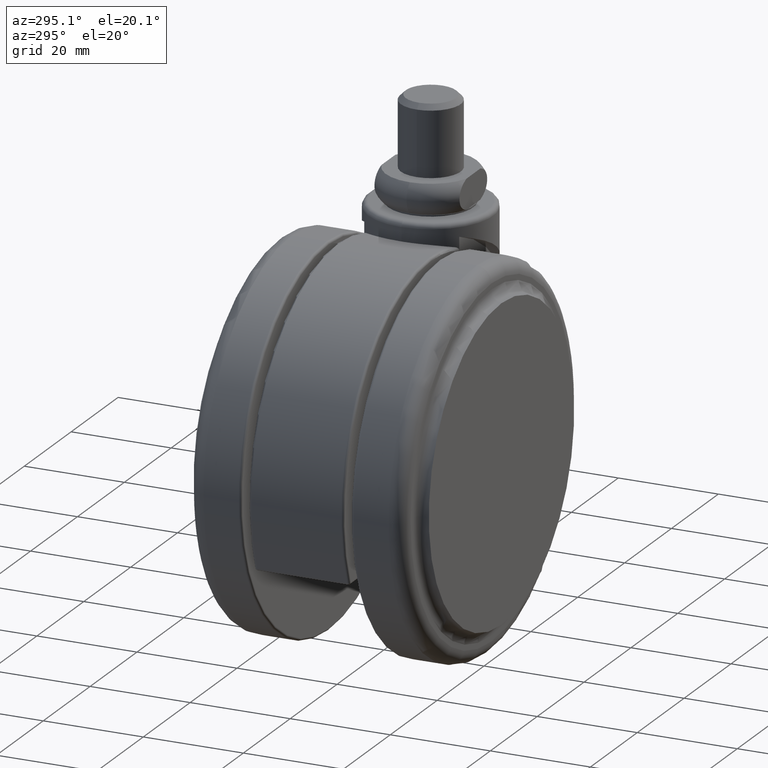
[diagram: clean part render]
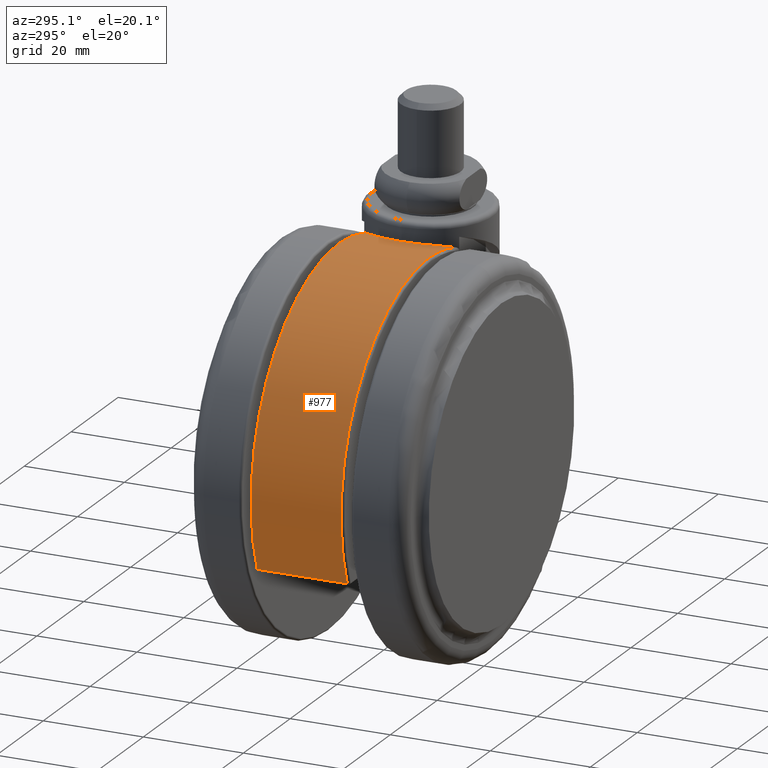
[diagram: same view with one face highlighted and labeled with its STEP entity id]
A machine part, auxiliary view. The second image highlights one B-rep face of the part: STEP entity #977.
In plain terms, the highlighted cylindrical surface (partial cylindrical patch) has radius 37.5 mm, axis along (0, -1, 0).
Its self-contained STEP definition (entity closure, byte-faithful):
#13 = ORIENTED_EDGE ( 'NONE', *, *, #1825, .T. ) ;
#56 = CARTESIAN_POINT ( 'NONE',  ( -8.972938191872776400, 8.712518925962278600, -4.656565500695855100 ) ) ;
#118 = AXIS2_PLACEMENT_3D ( 'NONE', #3455, #3085, #3177 ) ;
#146 = CIRCLE ( 'NONE', #2386, 37.50000000000000000 ) ;
#169 = CARTESIAN_POINT ( 'NONE',  ( -12.50000000000000000, 2.995251654553703900E-014, -3.757653858252425000 ) ) ;
#198 = ORIENTED_EDGE ( 'NONE', *, *, #922, .T. ) ;
#303 = AXIS2_PLACEMENT_3D ( 'NONE', #1575, #1366, #1321 ) ;
#343 = CARTESIAN_POINT ( 'NONE',  ( -12.39317029340259800, 1.685029787549746400, -3.779596173792669300 ) ) ;
#414 = CIRCLE ( 'NONE', #303, 37.50000000000000000 ) ;
#556 = CARTESIAN_POINT ( 'NONE',  ( -9.267378490791253800, -8.428721800230761100, -4.563286331331251100 ) ) ;
#653 = CARTESIAN_POINT ( 'NONE',  ( -12.07499608784259600, 3.339284003571599600, -3.846566198035183500 ) ) ;
#701 = CARTESIAN_POINT ( 'NONE',  ( -20.00000000000045100, -8.999999999999799300, -40.50000000000000000 ) ) ;
#772 = CARTESIAN_POINT ( 'NONE',  ( -20.00000000000045100, -8.999999999999799300, -3.000000000000002700 ) ) ;
#867 = CARTESIAN_POINT ( 'NONE',  ( -12.50000000000000000, 2.995251654553703900E-014, -3.757653858252425000 ) ) ;
#880 = DIRECTION ( 'NONE',  ( 0.0000000000000000000, 0.0000000000000000000, 1.000000000000000000 ) ) ;
#888 = CARTESIAN_POINT ( 'NONE',  ( -8.674675786448901200, -8.999999999999809900, -4.751055519666890000 ) ) ;
#922 = EDGE_CURVE ( 'NONE', #3170, #923, #2250, .T. ) ;
#923 = VERTEX_POINT ( 'NONE', #3403 ) ;
#957 = CARTESIAN_POINT ( 'NONE',  ( -11.32890675711923300, 5.299343921343998800, -4.015880330838450100 ) ) ;
#977 = ADVANCED_FACE ( 'NONE', ( #3760 ), #2054, .T. ) ;
#1001 = EDGE_CURVE ( 'NONE', #1374, #2538, #414, .T. ) ;
#1280 = CARTESIAN_POINT ( 'NONE',  ( -10.73730232612175200, 6.413705260039230400, -4.161370447469451500 ) ) ;
#1321 = DIRECTION ( 'NONE',  ( 0.0000000000000000000, 0.0000000000000000000, 1.000000000000000000 ) ) ;
#1322 = CARTESIAN_POINT ( 'NONE',  ( -54.86951361419750100, 0.0000000000000000000, -54.29735555493609700 ) ) ;
#1366 = DIRECTION ( 'NONE',  ( 0.0000000000000000000, 1.000000000000000000, 0.0000000000000000000 ) ) ;
#1374 = VERTEX_POINT ( 'NONE', #3328 ) ;
#1379 = B_SPLINE_CURVE_WITH_KNOTS ( 'NONE', 3,
 ( #2784, #1889, #2187, #343, #2492, #653, #2799, #957, #3104, #1280, #3396, #1588, #3704, #1902, #56, #2202 ),
 .UNSPECIFIED., .F., .F.,
 ( 4, 2, 2, 2, 2, 2, 2, 4 ),
 ( 0.01083297000393782300, 0.01209086360940814100, 0.01334875721487845800, 0.01586454442581909300, 0.01712243803128940900, 0.01838033163675972500, 0.01963822524223004400, 0.02089611884770036000 ),
 .UNSPECIFIED. ) ;
#1445 = CARTESIAN_POINT ( 'NONE',  ( -12.49999999999999800, -0.8407722689415021400, -3.757653858252426800 ) ) ;
#1457 = CARTESIAN_POINT ( 'NONE',  ( -10.51517581383509300, -6.771638203603449900, -4.218482085273332200 ) ) ;
#1478 = LINE ( 'NONE', #1322, #2206 ) ;
#1501 = CARTESIAN_POINT ( 'NONE',  ( -8.674675786448901200, -8.999999999999809900, -4.751055519666890000 ) ) ;
#1525 = CARTESIAN_POINT ( 'NONE',  ( -10.73847770299704000, -6.411853426593876500, -4.161066474243648700 ) ) ;
#1543 = CARTESIAN_POINT ( 'NONE',  ( -12.05401286481520300, -3.335758711177920300, -3.851291589132261400 ) ) ;
#1575 = CARTESIAN_POINT ( 'NONE',  ( -20.00000000000045100, -8.999999999999799300, -40.50000000000000000 ) ) ;
#1588 = CARTESIAN_POINT ( 'NONE',  ( -10.04652675849994200, 7.449099134835352100, -4.344254723362667800 ) ) ;
#1600 = CARTESIAN_POINT ( 'NONE',  ( -11.32877515779916800, -5.299412595533453000, -4.015916222165394300 ) ) ;
#1785 = CARTESIAN_POINT ( 'NONE',  ( -12.41604507323763200, -1.677237000265646300, -3.774477651932344200 ) ) ;
#1825 = EDGE_CURVE ( 'NONE', #2788, #3393, #1922, .T. ) ;
#1844 = ORIENTED_EDGE ( 'NONE', *, *, #3174, .T. ) ;
#1889 = CARTESIAN_POINT ( 'NONE',  ( -12.50000000000000000, 0.4198857714410683100, -3.757653858252427700 ) ) ;
#1902 = CARTESIAN_POINT ( 'NONE',  ( -9.258363189833458400, 8.408577873207479000, -4.570274193610124800 ) ) ;
#1922 = B_SPLINE_CURVE_WITH_KNOTS ( 'NONE', 3,
 ( #1501, #556, #3639, #1457, #1525, #2038, #1600, #2721, #2373, #1543, #3116, #1785, #1445, #867 ),
 .UNSPECIFIED., .F., .F.,
 ( 4, 2, 2, 2, 2, 2, 4 ),
 ( 0.0007578292614578130900, 0.003276614447077814200, 0.004536007039887815200, 0.005795399632697815700, 0.007054792225507816200, 0.008314184818317818500, 0.01083297000393782300 ),
 .UNSPECIFIED. ) ;
#2038 = CARTESIAN_POINT ( 'NONE',  ( -11.14504601772913600, -5.675801001144079400, -4.059861759056297500 ) ) ;
#2054 = CYLINDRICAL_SURFACE ( 'NONE', #118, 37.50000000000000000 ) ;
#2075 = DIRECTION ( 'NONE',  ( 0.0000000000000000000, 1.000000000000000000, 0.0000000000000000000 ) ) ;
#2084 = EDGE_CURVE ( 'NONE', #2538, #2788, #146, .T. ) ;
#2169 = CARTESIAN_POINT ( 'NONE',  ( -20.00000000000045100, 9.000000000000199000, -40.50000000000000000 ) ) ;
#2187 = CARTESIAN_POINT ( 'NONE',  ( -12.47890053855938700, 0.8408547169093227900, -3.761941011588097300 ) ) ;
#2202 = CARTESIAN_POINT ( 'NONE',  ( -8.674675786448538900, 9.000000000000230900, -4.751055519667010800 ) ) ;
#2206 = VECTOR ( 'NONE', #3144, 1000.000000000000000 ) ;
#2250 = CIRCLE ( 'NONE', #2658, 37.50000000000000000 ) ;
#2373 = CARTESIAN_POINT ( 'NONE',  ( -11.80282795274265500, -4.137603731906472700, -3.906654837730500200 ) ) ;
#2386 = AXIS2_PLACEMENT_3D ( 'NONE', #701, #2075, #880 ) ;
#2468 = ORIENTED_EDGE ( 'NONE', *, *, #2852, .T. ) ;
#2492 = CARTESIAN_POINT ( 'NONE',  ( -12.32874735431087700, 2.104418142397915100, -3.792924973968794700 ) ) ;
#2538 = VERTEX_POINT ( 'NONE', #772 ) ;
#2540 = CARTESIAN_POINT ( 'NONE',  ( -8.674675786448538900, 9.000000000000230900, -4.751055519667010800 ) ) ;
#2563 = DIRECTION ( 'NONE',  ( 0.0000000000000000000, -1.000000000000000000, 0.0000000000000000000 ) ) ;
#2658 = AXIS2_PLACEMENT_3D ( 'NONE', #2169, #2563, #2831 ) ;
#2721 = CARTESIAN_POINT ( 'NONE',  ( -11.65766593866017000, -4.530314039475490200, -3.939311114517211700 ) ) ;
#2727 = EDGE_LOOP ( 'NONE', ( #13, #2468, #198, #1844, #3536, #2847 ) ) ;
#2784 = CARTESIAN_POINT ( 'NONE',  ( -12.50000000000000000, 2.995251654553703900E-014, -3.757653858252425000 ) ) ;
#2788 = VERTEX_POINT ( 'NONE', #888 ) ;
#2799 = CARTESIAN_POINT ( 'NONE',  ( -11.82515094896099400, 4.138176200578661800, -3.900311104676254200 ) ) ;
#2831 = DIRECTION ( 'NONE',  ( 0.0000000000000000000, 0.0000000000000000000, -1.000000000000000000 ) ) ;
#2847 = ORIENTED_EDGE ( 'NONE', *, *, #2084, .T. ) ;
#2852 = EDGE_CURVE ( 'NONE', #3393, #3170, #1379, .T. ) ;
#3085 = DIRECTION ( 'NONE',  ( 0.0000000000000000000, -1.000000000000000000, 0.0000000000000000000 ) ) ;
#3104 = CARTESIAN_POINT ( 'NONE',  ( -11.14238452377035500, 5.680892846167517400, -4.060512983454700000 ) ) ;
#3116 = CARTESIAN_POINT ( 'NONE',  ( -12.16031509086136700, -2.925245578562813500, -3.828527006093505500 ) ) ;
#3144 = DIRECTION ( 'NONE',  ( 0.0000000000000000000, -1.000000000000000000, 0.0000000000000000000 ) ) ;
#3170 = VERTEX_POINT ( 'NONE', #2540 ) ;
#3174 = EDGE_CURVE ( 'NONE', #923, #1374, #1478, .T. ) ;
#3177 = DIRECTION ( 'NONE',  ( 0.0000000000000000000, 0.0000000000000000000, -1.000000000000000000 ) ) ;
#3328 = CARTESIAN_POINT ( 'NONE',  ( -54.86951361419750100, -8.999999999999799300, -54.29735555493609700 ) ) ;
#3393 = VERTEX_POINT ( 'NONE', #169 ) ;
#3396 = CARTESIAN_POINT ( 'NONE',  ( -10.51789632378315200, 6.767247206361606300, -4.217783199591902000 ) ) ;
#3403 = CARTESIAN_POINT ( 'NONE',  ( -54.86951361419750100, 9.000000000000199000, -54.29735555493609700 ) ) ;
#3455 = CARTESIAN_POINT ( 'NONE',  ( -20.00000000000045100, 0.0000000000000000000, -40.50000000000000000 ) ) ;
#3536 = ORIENTED_EDGE ( 'NONE', *, *, #1001, .T. ) ;
#3639 = CARTESIAN_POINT ( 'NONE',  ( -9.802904443546696100, -7.800582663888066600, -4.409683149507409400 ) ) ;
#3704 = CARTESIAN_POINT ( 'NONE',  ( -9.794559992498440300, 7.777407367369056200, -4.414310978766519800 ) ) ;
#3760 = FACE_OUTER_BOUND ( 'NONE', #2727, .T. ) ;